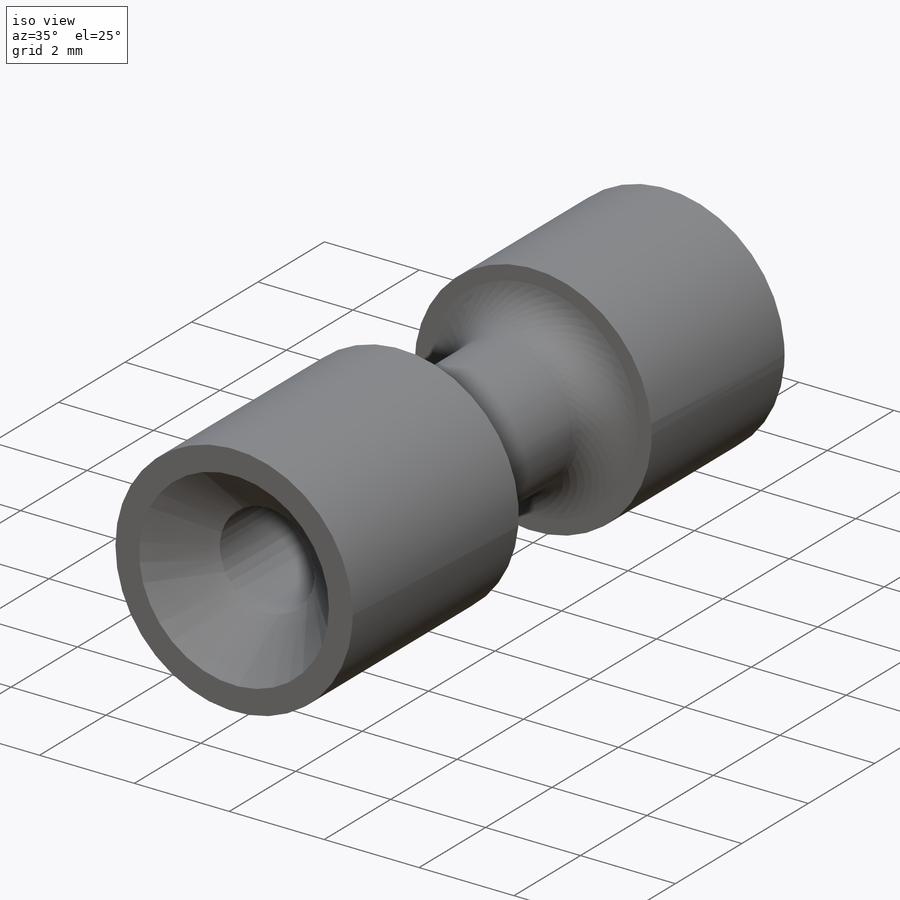
[diagram: iso view]
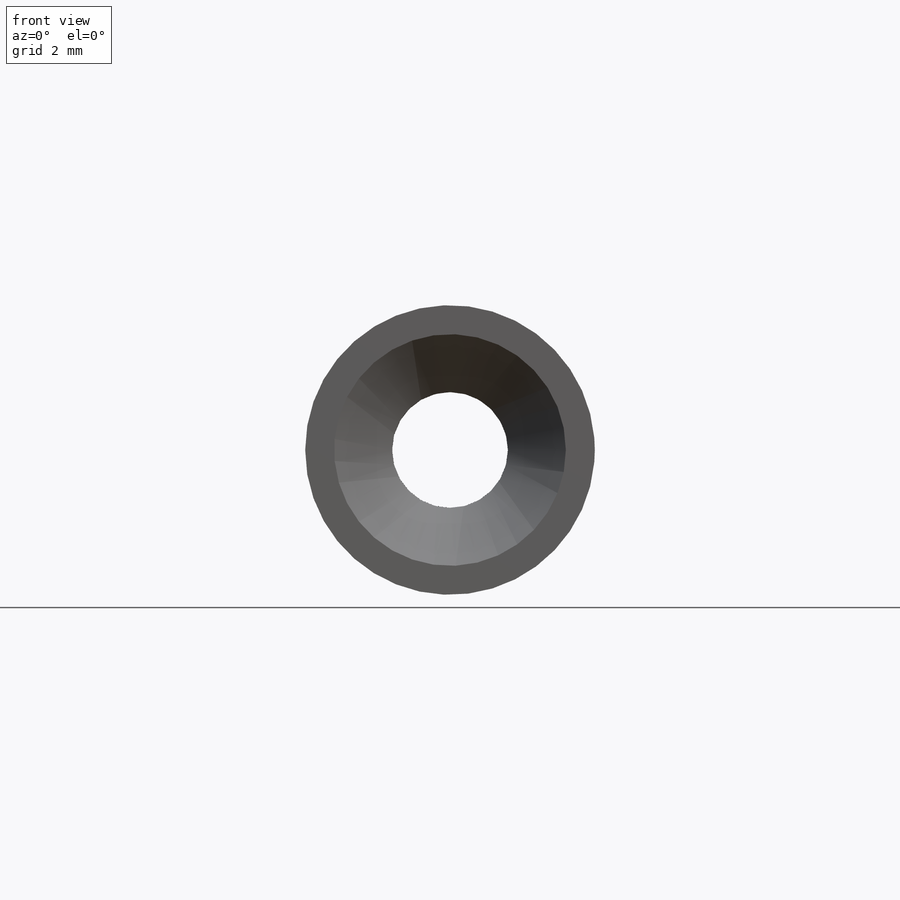
[diagram: front view]
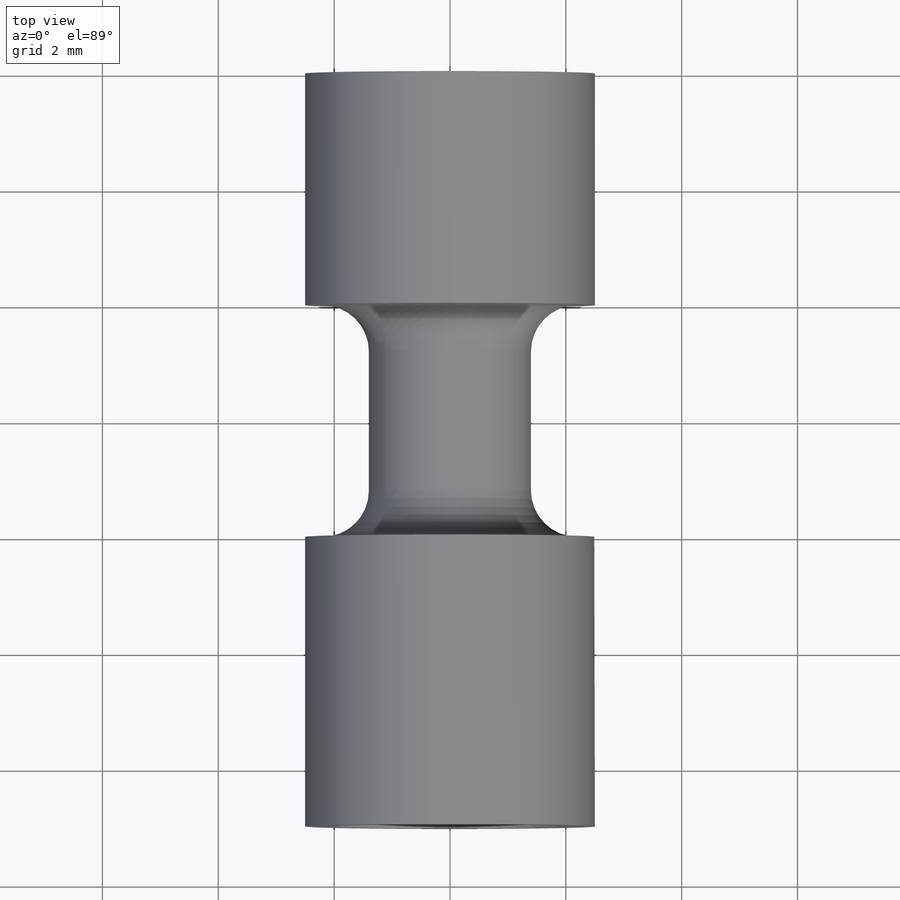
[diagram: top view]
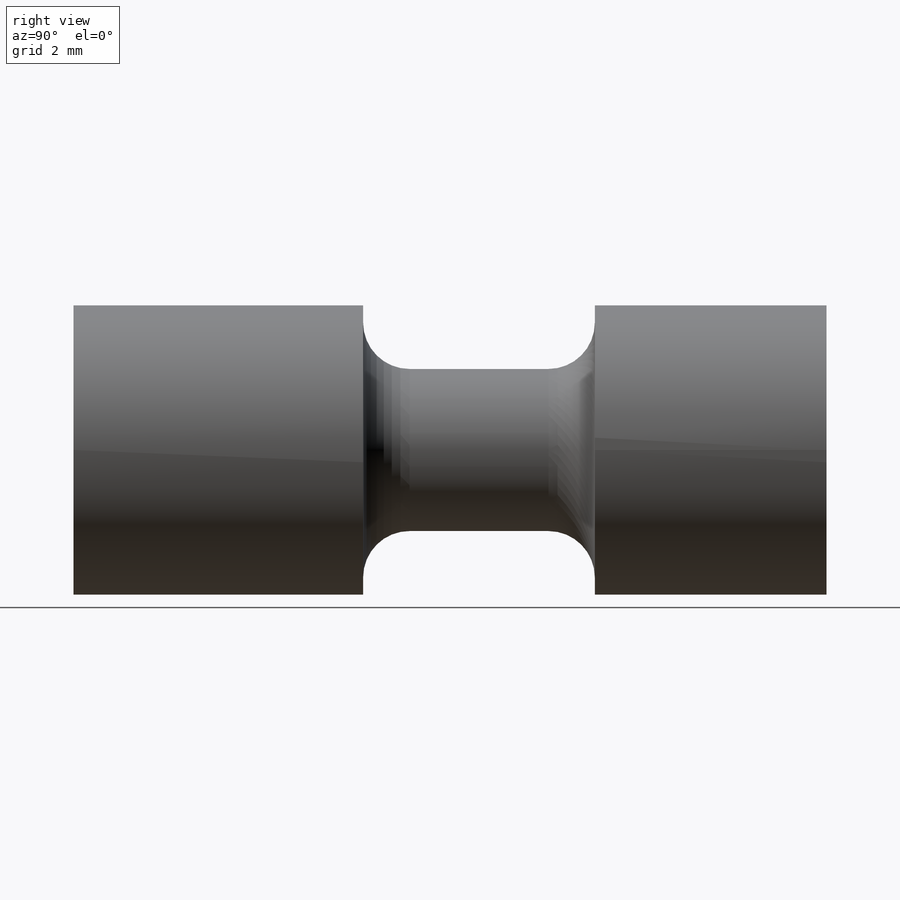
[diagram: right view]
SOLIDWORKS PART (.sldprt)
format: sldprt  version: not decoded by parser v0  size: 247,808 bytes
history: native  units: mm
features: sketch x5, material x1, extrude x1, thread x1, cut_revolve x1, hole x1, chamfer x1 (+16 scaffold rows collapsed)
feature tree (27):
  scaffold x16  (default folders/planes/origin — collapsed)
  material  "Material <not specified>"
  sketch  "Sketch1"  dims[D1=5.0mm]
  extrude  "Boss-Extrude1"  [1 undecoded]
  thread  "Cosmetic Thread2"  Diameter=13mm  [1 undecoded]
  sketch  "Sketch3"  dims[c1.D4=0.8mm c1.D1=1.4mm c1.D2=4.0mm c1.D3=4.0mm c2.D4=~1.54089mm c3.D4=30.0deg c3.D5=~2.467842mm c4.D5=45.0deg]
  cut_revolve  "Cut-Revolve1"  Angle=360deg
  hole  "Ø2.0 (2) Diameter Hole1"  Diameter=2mm Depth=13mm
  sketch  "Sketch5"
  sketch  "Sketch4"  dims[hole-wizard template sketch: 60 standard entries collapsed; hole parameters kept: c18.Thru Hole Depth=13.0mm]
  sketch  "Sketch6"  dims[D1=0.5mm]
  chamfer  "Chamfer2"  Distance=1mm Angle=45deg
decode coverage: 8 of 10 modeling features carry decoded parameters
note: ~ marks probable driven/reference dimensions
note: 2 parameter values undecoded
note: suppression state not decoded; provenance and decode notes live in map.json
